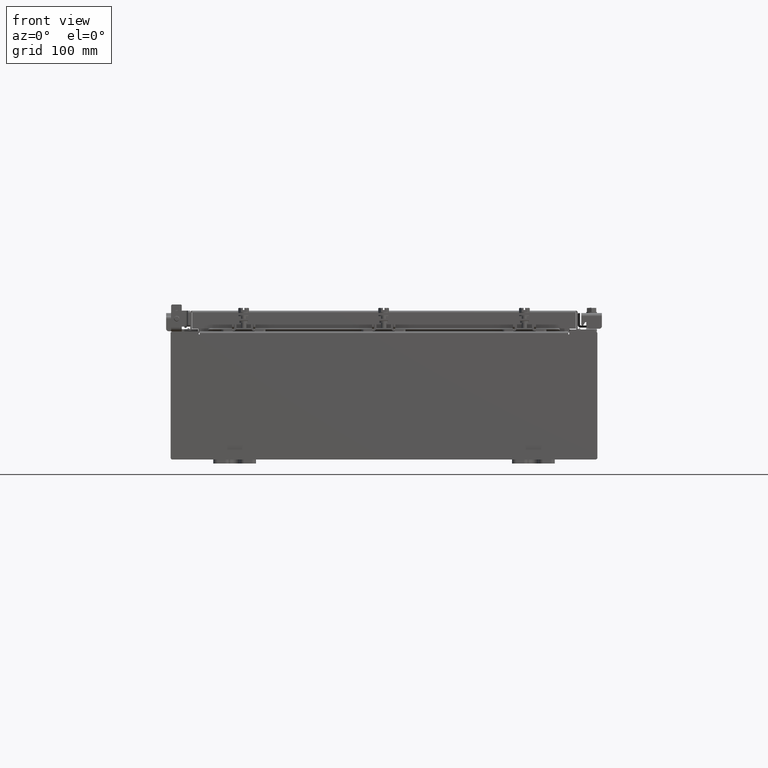
[diagram: clean part render]
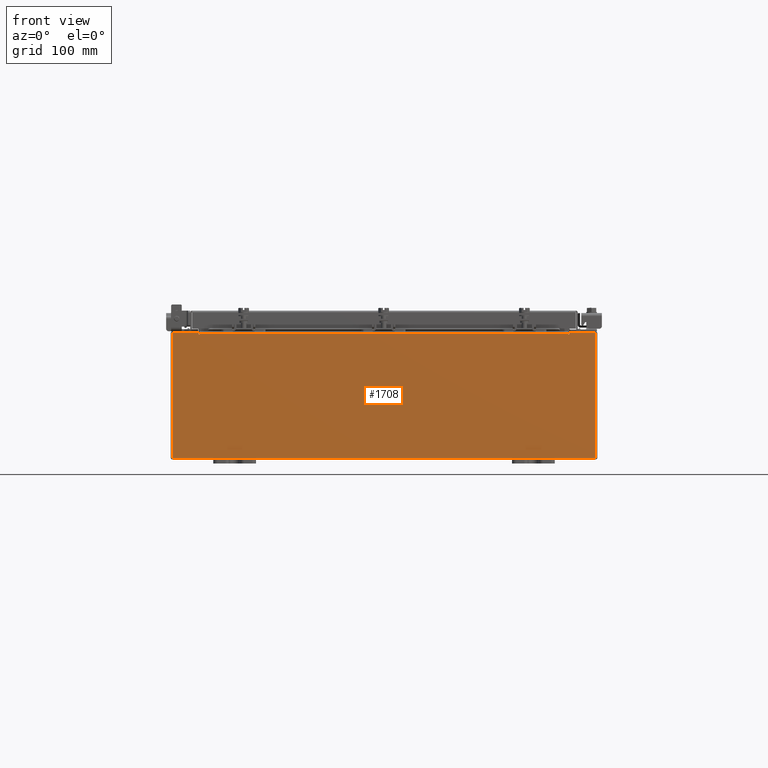
[diagram: same view with one face highlighted and labeled with its STEP entity id]
A machine part, front view. The second image highlights one B-rep face of the part: STEP entity #1708.
In plain terms, the highlighted planar face has unit normal (-0, 1, -0).
Its self-contained STEP definition (entity closure, byte-faithful):
#60 = DIRECTION ( 'NONE',  ( 0.0000000000000000000, 0.0000000000000000000, -1.000000000000000000 ) ) ;
#170 = LINE ( 'NONE', #6712, #1276 ) ;
#410 = CARTESIAN_POINT ( 'NONE',  ( -8.637199999999996400, -0.0000000000000000000, 2.874950000000000600 ) ) ;
#529 = DIRECTION ( 'NONE',  ( 0.0000000000000000000, 0.0000000000000000000, -1.000000000000000000 ) ) ;
#568 = VERTEX_POINT ( 'NONE', #6549 ) ;
#665 = DIRECTION ( 'NONE',  ( 0.0000000000000000000, 0.0000000000000000000, -1.000000000000000000 ) ) ;
#1017 = VECTOR ( 'NONE', #14828, 39.37007874015748100 ) ;
#1030 = DIRECTION ( 'NONE',  ( 0.0000000000000000000, 0.0000000000000000000, 1.000000000000000000 ) ) ;
#1276 = VECTOR ( 'NONE', #1432, 39.37007874015748100 ) ;
#1432 = DIRECTION ( 'NONE',  ( 0.0000000000000000000, 0.0000000000000000000, 1.000000000000000000 ) ) ;
#1708 = ADVANCED_FACE ( 'NONE', ( #14047 ), #6786, .F. ) ;
#1817 = VECTOR ( 'NONE', #17772, 39.37007874015748100 ) ;
#2311 = ORIENTED_EDGE ( 'NONE', *, *, #10909, .F. ) ;
#2324 = ORIENTED_EDGE ( 'NONE', *, *, #20632, .T. ) ;
#2355 = EDGE_LOOP ( 'NONE', ( #2479, #2311, #14509, #21068, #8603, #11544, #20704, #3764, #15960, #2324, #12824, #19492 ) ) ;
#2479 = ORIENTED_EDGE ( 'NONE', *, *, #17636, .F. ) ;
#3013 = CARTESIAN_POINT ( 'NONE',  ( 9.925300000000000000, 0.0000000000000000000, -2.925299999999999600 ) ) ;
#3128 = DIRECTION ( 'NONE',  ( 0.0000000000000000000, -1.000000000000000000, 0.0000000000000000000 ) ) ;
#3207 = VERTEX_POINT ( 'NONE', #7362 ) ;
#3669 = AXIS2_PLACEMENT_3D ( 'NONE', #12916, #12831, #665 ) ;
#3764 = ORIENTED_EDGE ( 'NONE', *, *, #15361, .T. ) ;
#3862 = LINE ( 'NONE', #11928, #17120 ) ;
#4293 = DIRECTION ( 'NONE',  ( 1.000000000000000000, 0.0000000000000000000, 0.0000000000000000000 ) ) ;
#4393 = CARTESIAN_POINT ( 'NONE',  ( -9.925300000000000000, 0.0000000000000000000, 2.925300000000000500 ) ) ;
#5686 = LINE ( 'NONE', #4393, #1017 ) ;
#6176 = CARTESIAN_POINT ( 'NONE',  ( -9.925300000000000000, 0.0000000000000000000, 2.925300000000000500 ) ) ;
#6183 = CARTESIAN_POINT ( 'NONE',  ( -9.925300000000000000, 0.0000000000000000000, -2.925299999999999600 ) ) ;
#6245 = VERTEX_POINT ( 'NONE', #12723 ) ;
#6332 = CARTESIAN_POINT ( 'NONE',  ( -9.925300000000000000, 0.0000000000000000000, -2.925299999999999600 ) ) ;
#6549 = CARTESIAN_POINT ( 'NONE',  ( 8.637200000000000000, 0.0000000000000000000, 2.874950000000000600 ) ) ;
#6712 = CARTESIAN_POINT ( 'NONE',  ( -8.674549999999996400, -0.0000000000000000000, 0.0000000000000000000 ) ) ;
#6753 = LINE ( 'NONE', #13196, #15409 ) ;
#6786 = PLANE ( 'NONE',  #19186 ) ;
#7163 = VERTEX_POINT ( 'NONE', #16104 ) ;
#7303 = VECTOR ( 'NONE', #17286, 39.37007874015748100 ) ;
#7362 = CARTESIAN_POINT ( 'NONE',  ( -8.674549999999996400, 0.0000000000000000000, 2.925300000000000500 ) ) ;
#7421 = CARTESIAN_POINT ( 'NONE',  ( -8.637199999999996400, -0.0000000000000000000, 0.0000000000000000000 ) ) ;
#7564 = CIRCLE ( 'NONE', #3669, 0.01867500000000003900 ) ;
#8603 = ORIENTED_EDGE ( 'NONE', *, *, #11584, .F. ) ;
#8924 = CARTESIAN_POINT ( 'NONE',  ( -9.925300000000000000, 0.0000000000000000000, 2.925300000000000500 ) ) ;
#8936 = LINE ( 'NONE', #6332, #13511 ) ;
#9039 = VERTEX_POINT ( 'NONE', #6176 ) ;
#9157 = EDGE_CURVE ( 'NONE', #12004, #20262, #9265, .T. ) ;
#9219 = VECTOR ( 'NONE', #20653, 39.37007874015748100 ) ;
#9265 = LINE ( 'NONE', #16365, #17354 ) ;
#10250 = CARTESIAN_POINT ( 'NONE',  ( -9.925300000000000000, 0.0000000000000000000, 2.925300000000000500 ) ) ;
#10278 = DIRECTION ( 'NONE',  ( 0.0000000000000000000, -0.0000000000000000000, -1.000000000000000000 ) ) ;
#10337 = EDGE_CURVE ( 'NONE', #9039, #3207, #22533, .T. ) ;
#10524 = DIRECTION ( 'NONE',  ( -0.0000000000000000000, 1.000000000000000000, -0.0000000000000000000 ) ) ;
#10538 = VERTEX_POINT ( 'NONE', #410 ) ;
#10654 = EDGE_CURVE ( 'NONE', #20586, #9039, #16471, .T. ) ;
#10767 = CARTESIAN_POINT ( 'NONE',  ( 8.674550000000001800, 0.0000000000000000000, 2.925300000000000500 ) ) ;
#10909 = EDGE_CURVE ( 'NONE', #10538, #22581, #7564, .T. ) ;
#10985 = EDGE_CURVE ( 'NONE', #13989, #7163, #11071, .T. ) ;
#11071 = LINE ( 'NONE', #19502, #1817 ) ;
#11544 = ORIENTED_EDGE ( 'NONE', *, *, #14505, .F. ) ;
#11584 = EDGE_CURVE ( 'NONE', #568, #20262, #6753, .T. ) ;
#11928 = CARTESIAN_POINT ( 'NONE',  ( 9.925300000000000000, 0.0000000000000000000, 2.925300000000000500 ) ) ;
#12004 = VERTEX_POINT ( 'NONE', #14229 ) ;
#12723 = CARTESIAN_POINT ( 'NONE',  ( 9.925300000000000000, 0.0000000000000000000, 2.925300000000000500 ) ) ;
#12824 = ORIENTED_EDGE ( 'NONE', *, *, #10654, .T. ) ;
#12831 = DIRECTION ( 'NONE',  ( -0.0000000000000000000, 1.000000000000000000, -0.0000000000000000000 ) ) ;
#12916 = CARTESIAN_POINT ( 'NONE',  ( -8.655874999999996400, 0.0000000000000000000, 2.874950000000000600 ) ) ;
#13041 = EDGE_CURVE ( 'NONE', #6245, #16912, #3862, .T. ) ;
#13196 = CARTESIAN_POINT ( 'NONE',  ( 8.637200000000000000, 0.0000000000000000000, 0.0000000000000000000 ) ) ;
#13511 = VECTOR ( 'NONE', #14969, 39.37007874015748100 ) ;
#13989 = VERTEX_POINT ( 'NONE', #10767 ) ;
#14047 = FACE_OUTER_BOUND ( 'NONE', #2355, .T. ) ;
#14066 = CARTESIAN_POINT ( 'NONE',  ( 8.637200000000000000, 0.0000000000000000000, 2.912300000000000600 ) ) ;
#14229 = CARTESIAN_POINT ( 'NONE',  ( -8.637199999999996400, 1.024442997624098700E-016, 2.912300000000000600 ) ) ;
#14505 = EDGE_CURVE ( 'NONE', #7163, #568, #15186, .T. ) ;
#14509 = ORIENTED_EDGE ( 'NONE', *, *, #17275, .F. ) ;
#14758 = AXIS2_PLACEMENT_3D ( 'NONE', #20926, #10524, #60 ) ;
#14828 = DIRECTION ( 'NONE',  ( 1.000000000000000000, 0.0000000000000000000, 0.0000000000000000000 ) ) ;
#14969 = DIRECTION ( 'NONE',  ( -1.000000000000000000, -0.0000000000000000000, -0.0000000000000000000 ) ) ;
#15032 = CARTESIAN_POINT ( 'NONE',  ( 0.0000000000000000000, 0.0000000000000000000, 0.0000000000000000000 ) ) ;
#15186 = CIRCLE ( 'NONE', #14758, 0.01867500000000003900 ) ;
#15361 = EDGE_CURVE ( 'NONE', #13989, #6245, #5686, .T. ) ;
#15409 = VECTOR ( 'NONE', #1030, 39.37007874015748100 ) ;
#15960 = ORIENTED_EDGE ( 'NONE', *, *, #13041, .T. ) ;
#16104 = CARTESIAN_POINT ( 'NONE',  ( 8.674550000000000000, 0.0000000000000000000, 2.874950000000000600 ) ) ;
#16270 = CARTESIAN_POINT ( 'NONE',  ( -8.674549999999996400, 0.0000000000000000000, 2.874950000000000600 ) ) ;
#16365 = CARTESIAN_POINT ( 'NONE',  ( -8.637200000000000000, 1.024442997624098700E-016, 2.912300000000000600 ) ) ;
#16471 = LINE ( 'NONE', #8924, #7303 ) ;
#16912 = VERTEX_POINT ( 'NONE', #3013 ) ;
#17029 = LINE ( 'NONE', #7421, #19535 ) ;
#17120 = VECTOR ( 'NONE', #22354, 39.37007874015748100 ) ;
#17275 = EDGE_CURVE ( 'NONE', #12004, #10538, #17029, .T. ) ;
#17286 = DIRECTION ( 'NONE',  ( -0.0000000000000000000, -0.0000000000000000000, 1.000000000000000000 ) ) ;
#17354 = VECTOR ( 'NONE', #4293, 39.37007874015748100 ) ;
#17636 = EDGE_CURVE ( 'NONE', #22581, #3207, #170, .T. ) ;
#17772 = DIRECTION ( 'NONE',  ( -6.510859170600007400E-014, 0.0000000000000000000, -1.000000000000000000 ) ) ;
#19186 = AXIS2_PLACEMENT_3D ( 'NONE', #15032, #3128, #10278 ) ;
#19492 = ORIENTED_EDGE ( 'NONE', *, *, #10337, .T. ) ;
#19502 = CARTESIAN_POINT ( 'NONE',  ( 8.674549999999813500, -0.0000000000000000000, -5.647877341832707700E-013 ) ) ;
#19535 = VECTOR ( 'NONE', #529, 39.37007874015748100 ) ;
#20262 = VERTEX_POINT ( 'NONE', #14066 ) ;
#20586 = VERTEX_POINT ( 'NONE', #6183 ) ;
#20632 = EDGE_CURVE ( 'NONE', #16912, #20586, #8936, .T. ) ;
#20653 = DIRECTION ( 'NONE',  ( 1.000000000000000000, 0.0000000000000000000, 0.0000000000000000000 ) ) ;
#20704 = ORIENTED_EDGE ( 'NONE', *, *, #10985, .F. ) ;
#20926 = CARTESIAN_POINT ( 'NONE',  ( 8.655875000000000000, 0.0000000000000000000, 2.874950000000000600 ) ) ;
#21068 = ORIENTED_EDGE ( 'NONE', *, *, #9157, .T. ) ;
#22354 = DIRECTION ( 'NONE',  ( 0.0000000000000000000, 0.0000000000000000000, -1.000000000000000000 ) ) ;
#22533 = LINE ( 'NONE', #10250, #9219 ) ;
#22581 = VERTEX_POINT ( 'NONE', #16270 ) ;